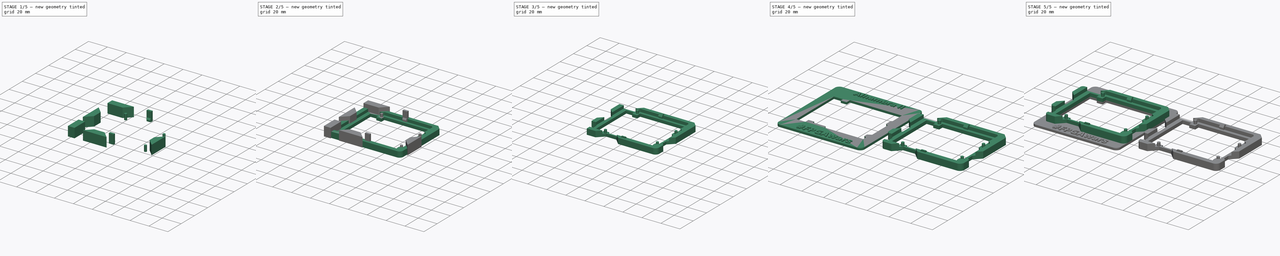
[diagram: build sequence overview — one tinted view per stage of 5, left to right]
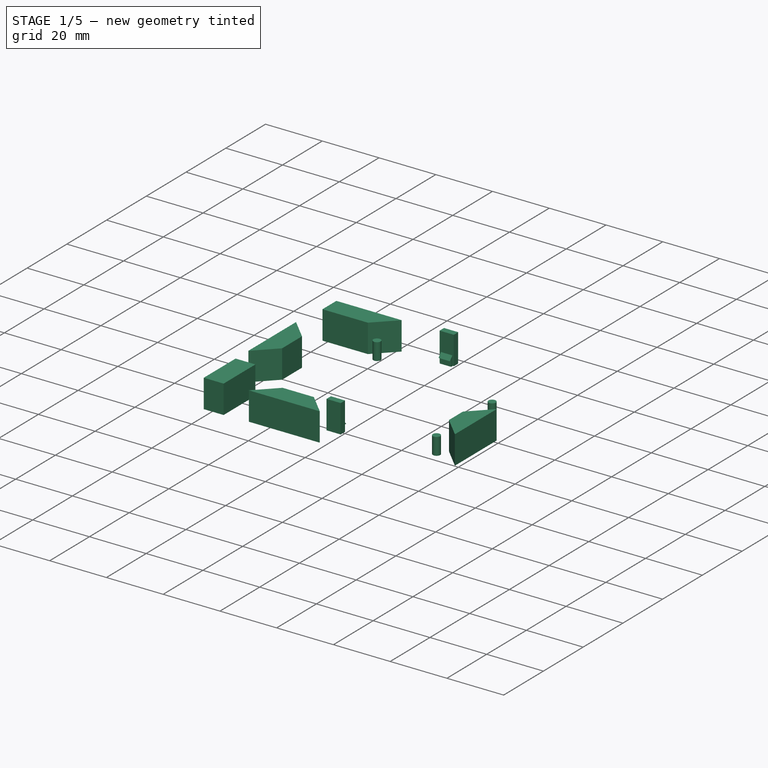
[diagram: stage 1 of 5 — iso view after this stage's code; geometry added in this stage tinted green]
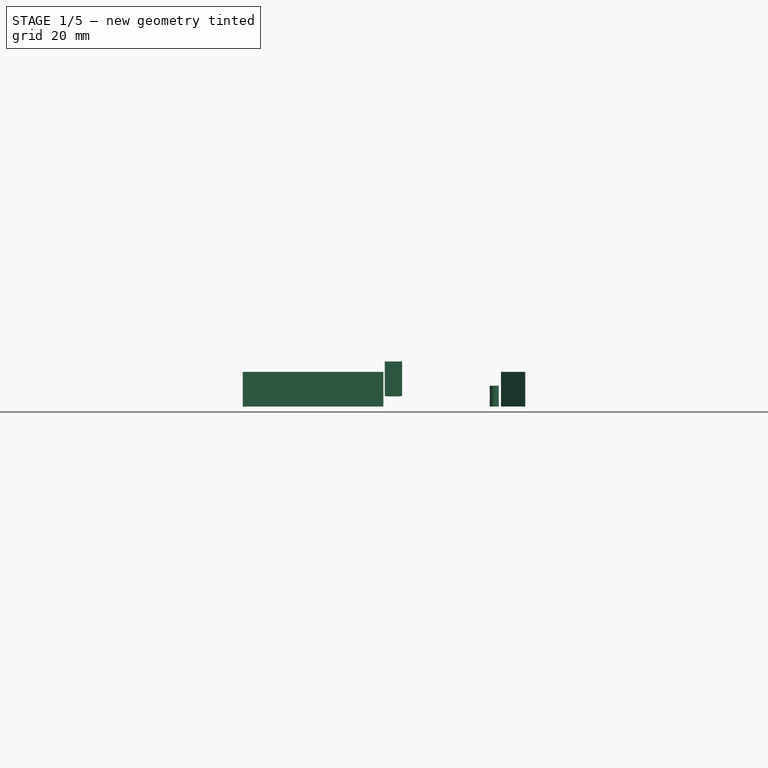
[diagram: stage 1 of 5 — front view after this stage's code; geometry added in this stage tinted green]
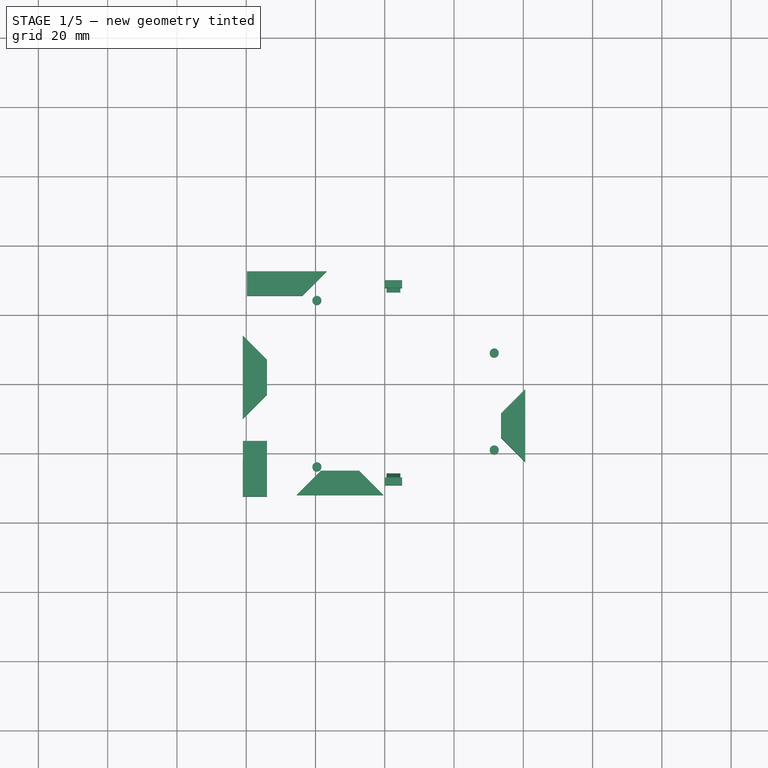
[diagram: stage 1 of 5 — top view after this stage's code; geometry added in this stage tinted green]
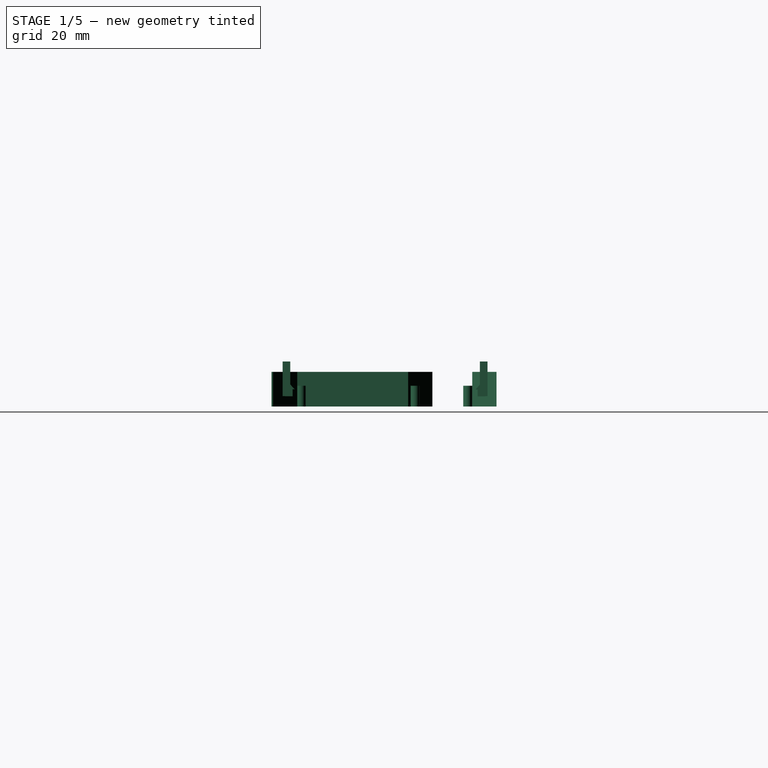
[diagram: stage 1 of 5 — right view after this stage's code; geometry added in this stage tinted green]
FCSTD DOCUMENT  (FreeCAD 0.17R9747 (Git))
Label: alhambra-II-support
License: All rights reserved
LicenseURL: http://en.wikipedia.org/wiki/All_rights_reserved
objects: Part::Extrusion×10, Sketcher::SketchObject×7, PartDesign::Body×5, Part::Cut×4, Part::MultiFuse×4, Part::Feature×3, Part::Part2DObjectPython×2, App::DocumentObjectGroup×2, Part::FeaturePython×2, Part::Fillet×2
note: 39 computed .brp shape members not serialized (recipe doc carries the construction recipe); baked Part::Feature solids carry a one-line shape summary decoded from their .brp

FEATURE [Sketcher::SketchObject] Sketch004  label="Sk-cortes-acceso-laterales"
  MapMode = 5
  sketch-geometry (20):
    g0: LineSegment StartX=-23.7646 StartY=25.5269 StartZ=0 EndX=-39.7646 EndY=25.5269 EndZ=0
    g1: LineSegment StartX=-39.7646 StartY=32.5269 StartZ=0 EndX=-16.7646 EndY=32.5269 EndZ=0
    g2: LineSegment StartX=-16.7646 StartY=32.5269 StartZ=0 EndX=-23.7646 EndY=25.5269 EndZ=0
    g3: LineSegment StartX=-34 StartY=7 StartZ=0 EndX=-34 EndY=-3 EndZ=0
    g4: LineSegment StartX=-41 StartY=14 StartZ=0 EndX=-34 EndY=7 EndZ=0
    g5: LineSegment StartX=-41 StartY=14 StartZ=0 EndX=-41 EndY=-10 EndZ=0
    g6: LineSegment StartX=-34 StartY=-32.45 StartZ=0 EndX=-34 EndY=-16.45 EndZ=0
    g7: LineSegment StartX=-18.4091 StartY=-25.0228 StartZ=0 EndX=-7.40907 EndY=-25.0228 EndZ=0
    g8: LineSegment StartX=-7.40907 StartY=-25.0228 StartZ=0 EndX=-0.409067 EndY=-32.0228 EndZ=0
    g9: LineSegment StartX=-0.409067 StartY=-32.0228 StartZ=0 EndX=-25.4091 EndY=-32.0228 EndZ=0
    g10: LineSegment StartX=-25.4091 StartY=-32.0228 StartZ=0 EndX=-18.4091 EndY=-25.0228 EndZ=0
    g11: LineSegment StartX=33.55 StartY=-8.5 StartZ=0 EndX=33.55 EndY=-15.5 EndZ=0
    g12: LineSegment StartX=33.55 StartY=-15.5 StartZ=0 EndX=40.55 EndY=-22.5 EndZ=0
    g13: LineSegment StartX=40.55 StartY=-22.5 StartZ=0 EndX=40.55 EndY=-1.5 EndZ=0
    g14: LineSegment StartX=40.55 StartY=-1.5 StartZ=0 EndX=33.55 EndY=-8.5 EndZ=0
    g15: LineSegment StartX=-34 StartY=-32.45 StartZ=0 EndX=-41 EndY=-32.45 EndZ=0
    g16: LineSegment StartX=-39.7646 StartY=25.5269 StartZ=0 EndX=-39.7646 EndY=32.5269 EndZ=0
    g17: LineSegment StartX=-34 StartY=-16.45 StartZ=0 EndX=-40.9776 EndY=-16.45 EndZ=0
    g18: LineSegment StartX=-40.9776 StartY=-16.45 StartZ=0 EndX=-41 EndY=-32.45 EndZ=0
    g19: LineSegment StartX=-41 StartY=-10 StartZ=0 EndX=-34 EndY=-3 EndZ=0
  constraints (55):
    c: Horizontal(g0)
    c: Horizontal(g1)
    c: Coincident(g1,g2)
    c: Coincident(g2,g0)
    c: Angle(g2,g0) = 2.35619
    c: Vertical(g3)
    c: Coincident(g4,g3)
    c: DistanceY(g3,g3) = 10
    c: DistanceY(g0,g1) = 7
    c: DistanceX(g4,g3) = 7
    c: Vertical(g5)
    c: Vertical(g6)
    c: Horizontal(g7)
    c: Coincident(g7,g8)
    c: Coincident(g8,g9)
    c: Horizontal(g9)
    c: Coincident(g9,g10)
    c: Coincident(g10,g7)
    c: DistanceX(g7,g7) = 11
    c: DistanceY(g9,g7) = 7
    c: Angle(g10,g7) = 2.35619
    c: Angle(g7,g8) = 2.35619
    c: Vertical(g11)
    c: Coincident(g11,g12)
    c: Coincident(g12,g13)
    c: Vertical(g13)
    c: Coincident(g13,g14)
    c: Coincident(g14,g11)
    c: DistanceX(g11,g13) = 7
    c: Angle(g14,g13) = 0.785398
    c: Angle(g13,g12) = 0.785398
    c: Coincident(g15,g6)
    c: Horizontal(g15)
    c: Coincident(g18,g15)
    c: Coincident(g16,g0)
    c: Vertical(g16)
    c: Coincident(g16,g1)
    c: DistanceY(g6,g6) = 16
    c: DistanceX(g6,g-1) = 34
    c: DistanceX(g0,g0) = 16
    c: Horizontal(g17)
    c: Coincident(g17,g18)
    c: DistanceX(g5,g3) = 7
    c: Coincident(g4,g5)
    c: Coincident(g6,g17)
    c: DistanceY(g11,g11) = 7
    c: DistanceY(g11,g-1) = 8.5
    c: DistanceX(g-1,g11) = 33.55
    c: Coincident(g19,g5)
    c: Coincident(g19,g3)
    c: Angle(g19,g5) = 0.785398
    c: Angle(g5,g4) = 0.785398
    c: DistanceY(g-1,g3) = 7
    c: DistanceX(g3,g-1) = 34
    c: DistanceY(g6,g-1) = 32.45
FEATURE [Part::Extrusion] Extrude003  label="Cortes-acceso-laterales"
  Base = -> Sketch004
  Dir = (0,0,1)
  DirMode = 2
  FaceMakerClass = Part::FaceMakerBullseye
  LengthFwd = 10
  LengthRev = 0
  Solid = true
  Symmetric = false
FEATURE [Sketcher::SketchObject] Sketch005  label="Sk-huecos-clic-agarre"
  MapMode = 5
  Support = -> [XY_Plane002]
  sketch-geometry (8):
    g0: LineSegment StartX=0 StartY=27.71 StartZ=0 EndX=5 EndY=27.71 EndZ=0
    g1: LineSegment StartX=5 StartY=27.71 StartZ=0 EndX=5 EndY=29.91 EndZ=0
    g2: LineSegment StartX=5 StartY=29.91 StartZ=0 EndX=0 EndY=29.91 EndZ=0
    g3: LineSegment StartX=0 StartY=29.91 StartZ=0 EndX=0 EndY=27.71 EndZ=0
    g4: LineSegment StartX=0 StartY=-27.03 StartZ=0 EndX=5 EndY=-27.03 EndZ=0
    g5: LineSegment StartX=5 StartY=-27.03 StartZ=0 EndX=5 EndY=-29.23 EndZ=0
    g6: LineSegment StartX=5 StartY=-29.23 StartZ=0 EndX=0 EndY=-29.23 EndZ=0
    g7: LineSegment StartX=0 StartY=-29.23 StartZ=0 EndX=0 EndY=-27.03 EndZ=0
  constraints (24):
    c: Coincident(g0,g1)
    c: Coincident(g1,g2)
    c: Coincident(g2,g3)
    c: Coincident(g3,g0)
    c: Horizontal(g0)
    c: Horizontal(g2)
    c: Vertical(g1)
    c: Vertical(g3)
    c: PointOnObject(g0,g-2)
    c: Coincident(g4,g5)
    c: Coincident(g5,g6)
    c: Coincident(g6,g7)
    c: Coincident(g7,g4)
    c: Horizontal(g4)
    c: Horizontal(g6)
    c: Vertical(g5)
    c: Vertical(g7)
    c: PointOnObject(g4,g-2)
    c: DistanceY(g1,g1) = 2.2
    c: DistanceX(g2,g2) = 5
    c: DistanceY(g5,g5) = 2.2
    c: DistanceX(g6,g6) = 5
    c: DistanceY(g-1,g0) = 27.71
    c: DistanceY(g4,g-1) = 27.03
FEATURE [Part::Extrusion] Extrude004  label="huecos-clic-agarre"
  Base = -> Sketch005
  Dir = (0,0,1)
  DirMode = 2
  FaceMakerClass = Part::FaceMakerBullseye
  LengthFwd = 10
  LengthRev = 0
  Placement = pos=(0,0,3) rot=(0,0,1;0rad)
  Solid = true
  Symmetric = false
FEATURE [Sketcher::SketchObject] Sketch006  label="Sk-click-agarre"
  MapMode = 5
  Placement = pos=(0,0,0) rot=(0.57735,0.57735,0.57735;2.0944rad)
  Support = -> [YZ_Plane002]
  sketch-geometry (12):
    g0: LineSegment StartX=29.253 StartY=2.91375 StartZ=0 EndX=27.053 EndY=2.91375 EndZ=0
    g1: LineSegment StartX=27.053 StartY=2.91375 StartZ=0 EndX=27.053 EndY=4.91375 EndZ=0
    g2: LineSegment StartX=27.053 StartY=4.91375 StartZ=0 EndX=26.453 EndY=4.91375 EndZ=0
    g3: LineSegment StartX=26.453 StartY=4.91375 StartZ=0 EndX=28.253 EndY=6.91375 EndZ=0
    g4: LineSegment StartX=28.253 StartY=6.91375 StartZ=0 EndX=29.253 EndY=6.91375 EndZ=0
    g5: LineSegment StartX=29.253 StartY=6.91375 StartZ=0 EndX=29.253 EndY=2.91375 EndZ=0
    g6: LineSegment StartX=-26.3544 StartY=2.97545 StartZ=0 EndX=-28.5544 EndY=2.97545 EndZ=0
    g7: LineSegment StartX=-28.5544 StartY=2.97545 StartZ=0 EndX=-28.5544 EndY=6.97545 EndZ=0
    g8: LineSegment StartX=-28.5544 StartY=6.97545 StartZ=0 EndX=-27.5544 EndY=6.97545 EndZ=0
    g9: LineSegment StartX=-27.5544 StartY=6.97545 StartZ=0 EndX=-25.7544 EndY=4.97545 EndZ=0
    g10: LineSegment StartX=-25.7544 StartY=4.97545 StartZ=0 EndX=-26.3544 EndY=4.97545 EndZ=0
    g11: LineSegment StartX=-26.3544 StartY=4.97545 StartZ=0 EndX=-26.3544 EndY=2.97545 EndZ=0
  constraints (32):
    c: Horizontal(g0)
    c: Coincident(g0,g1)
    c: Vertical(g1)
    c: Coincident(g1,g2)
    c: Coincident(g2,g3)
    c: Coincident(g3,g4)
    c: Coincident(g4,g5)
    c: Coincident(g5,g0)
    c: Vertical(g5)
    c: DistanceY(g5,g5) = 4
    c: DistanceX(g0,g0) = 2.2
    c: Horizontal(g4)
    c: DistanceX(g4,g4) = 1
    c: Horizontal(g2)
    c: DistanceX(g2,g2) = 0.6
    c: DistanceY(g0,g1) = 2
    c: Horizontal(g6)
    c: Coincident(g6,g7)
    c: Vertical(g7)
    c: Coincident(g7,g8)
    c: Horizontal(g8)
    c: Coincident(g8,g9)
    c: Coincident(g9,g10)
    c: Horizontal(g10)
    c: Coincident(g10,g11)
    c: Coincident(g11,g6)
    c: Vertical(g11)
    c: DistanceX(g6,g6) = 2.2
    c: DistanceY(g7,g7) = 4
    c: DistanceX(g8,g8) = 1
    c: DistanceX(g10,g10) = 0.6
    c: DistanceY(g6,g10) = 2
FEATURE [PartDesign::Body] Body002  label="Body-clic-agarre"
  Group = -> [Sketch005,Sketch006]
  Origin = -> Body002Origin
FEATURE [Part::Extrusion] Extrude005  label="clicks"
  Base = -> Sketch006
  Dir = (1,0,0)
  DirMode = 2
  FaceMakerClass = Part::FaceMakerBullseye
  LengthFwd = 4
  LengthRev = 0
  Placement = pos=(0.5,0,0) rot=(0,0,1;0rad)
  Solid = true
  Symmetric = false
FEATURE [Sketcher::SketchObject] Sketch007  label="Sk-taladros"
  MapMode = 5
  Support = -> [XY_Plane003]
  sketch-geometry (4):
    g0: Circle CenterX=-19.6 CenterY=24.2 CenterZ=0 NormalX=0 NormalY=0 NormalZ=1 Radius=1.3
    g1: Circle CenterX=31.6 CenterY=9.03 CenterZ=0 NormalX=0 NormalY=0 NormalZ=1 Radius=1.3
    g2: Circle CenterX=31.6 CenterY=-18.97 CenterZ=0 NormalX=0 NormalY=0 NormalZ=1 Radius=1.3
    g3: Circle CenterX=-19.6 CenterY=-23.85 CenterZ=0 NormalX=0 NormalY=0 NormalZ=1 Radius=1.3
  constraints (12):
    c: Radius(g0) = 1.3
    c: Equal(g0,g1)
    c: Equal(g1,g2)
    c: Equal(g2,g3)
    c: DistanceY(g2,g1) = 28
    c: DistanceX(g-1,g1) = 31.6
    c: DistanceY(g2,g-1) = 18.97
    c: DistanceX(g3,g-1) = 19.6
    c: DistanceY(g3,g-1) = 23.85
    c: DistanceY(g-1,g0) = 24.2
    c: DistanceX(g0,g-1) = 19.6
    c: DistanceX(g-1,g2) = 31.6
FEATURE [PartDesign::Body] Body003  label="Body-taladros"
  Group = -> [Sketch007]
  Origin = -> Body003Origin
FEATURE [Part::Extrusion] Extrude006  label="Taladros"
  Base = -> Sketch007
  Dir = (0,0,1)
  DirMode = 2
  FaceMakerClass = Part::FaceMakerBullseye
  LengthFwd = 6
  LengthRev = 0
  Solid = true
  Symmetric = false
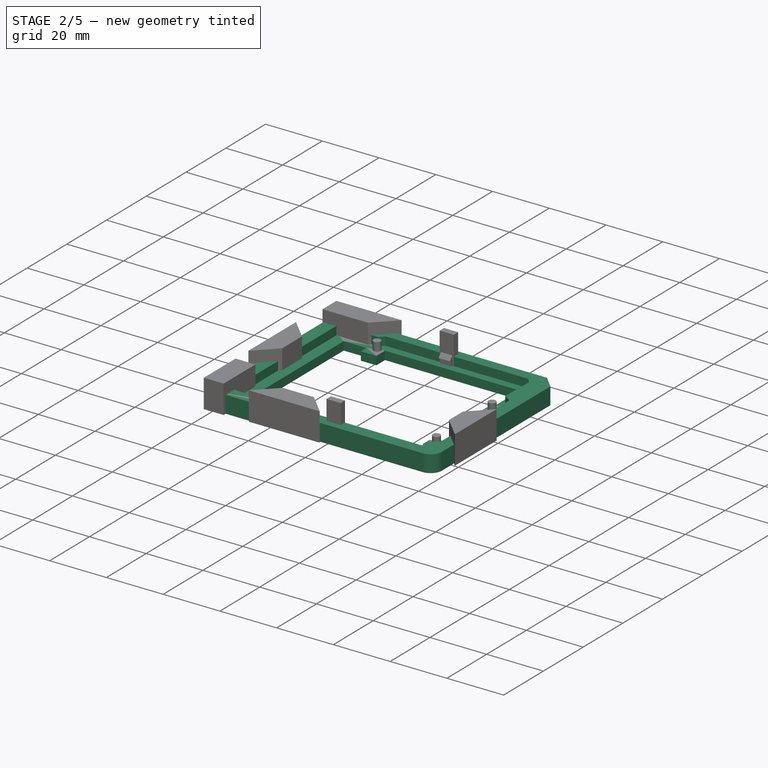
[diagram: stage 2 of 5 — iso view after this stage's code; geometry added in this stage tinted green]
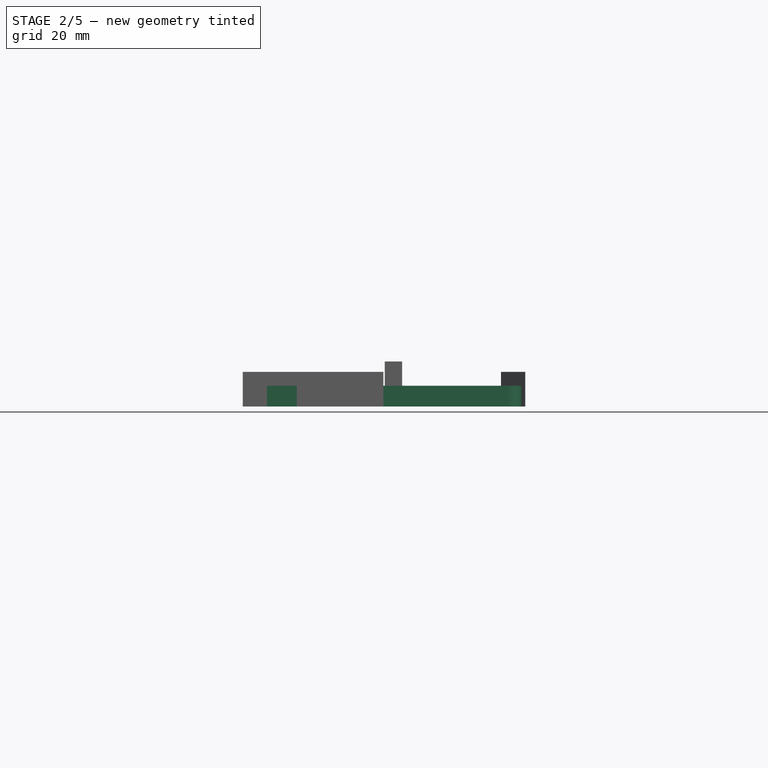
[diagram: stage 2 of 5 — front view after this stage's code; geometry added in this stage tinted green]
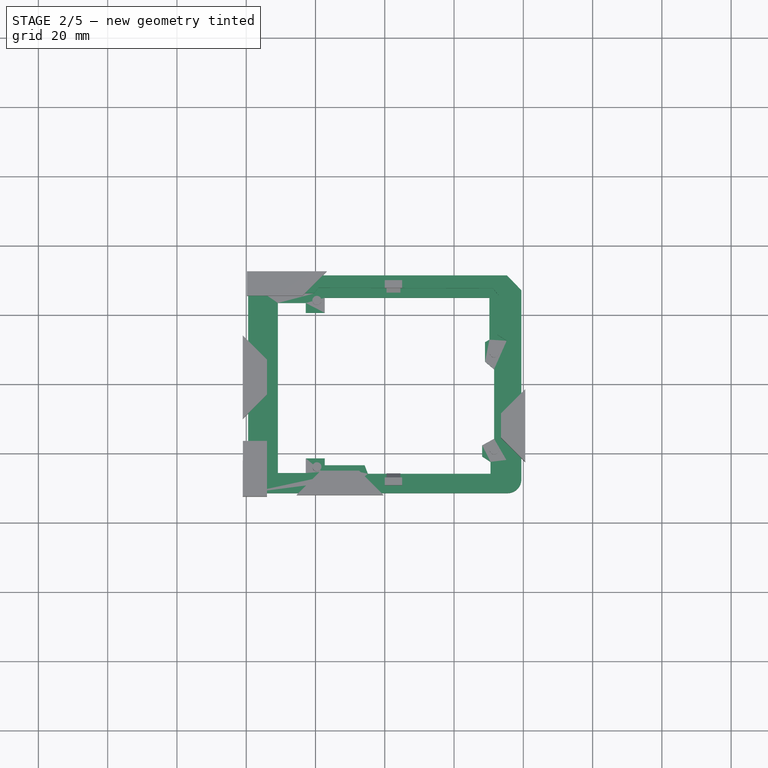
[diagram: stage 2 of 5 — top view after this stage's code; geometry added in this stage tinted green]
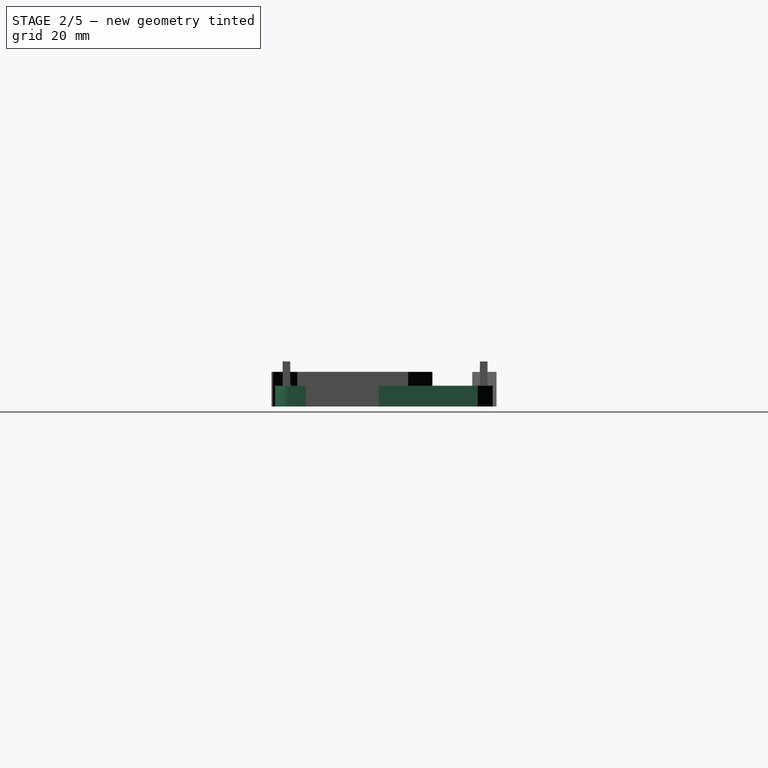
[diagram: stage 2 of 5 — right view after this stage's code; geometry added in this stage tinted green]
FEATURE [Part::Feature] path814  label="contorno-PCB"
  Placement = pos=(-34.8,27.8,0) rot=(0,0,1;0rad)
  shape: bbox 69.69 x 54.68 x 2e-07 mm, 0 faces, 0 solids (baked)
FEATURE [Part::Feature] path814001  label="contorno-PCB-offset"
  Placement = pos=(-34.8,27.8,0) rot=(0,0,1;0rad)
  shape: bbox 70.09 x 55 x 2e-07 mm, 0 faces, 0 solids (baked)
FEATURE [PartDesign::Body] Body  label="Body-soporte-base"
  Origin = -> BodyOrigin
FEATURE [Sketcher::SketchObject] Sketch  label="Sketch-base"
  MapMode = 5
  Support = -> [XY_Plane]
  sketch-geometry (10):
    g0: LineSegment StartX=-39.44 StartY=31.42 StartZ=0 EndX=35.25 EndY=31.42 EndZ=0
    g1: LineSegment StartX=39.44 StartY=27.12 StartZ=0 EndX=39.44 EndY=-27.42 EndZ=0
    g2: LineSegment StartX=35.44 StartY=-31.42 StartZ=0 EndX=-39.44 EndY=-31.42 EndZ=0
    g3: LineSegment StartX=-39.44 StartY=-31.42 StartZ=0 EndX=-39.44 EndY=31.42 EndZ=0
    g4: ArcOfCircle CenterX=35.44 CenterY=-27.42 CenterZ=0 NormalX=0 NormalY=0 NormalZ=1 Radius=4 StartAngle=4.71239 EndAngle=6.28319
    g5: LineSegment StartX=35.25 StartY=31.42 StartZ=0 EndX=39.44 EndY=27.12 EndZ=0
    g6: LineSegment [constr] StartX=-35.14 StartY=27.12 StartZ=0 EndX=35.14 EndY=27.12 EndZ=0
    g7: LineSegment [constr] StartX=-35.14 StartY=-27.12 StartZ=0 EndX=34.88 EndY=-27.12 EndZ=0
    g8: LineSegment [constr] StartX=-35.14 StartY=-27.12 StartZ=0 EndX=-35.14 EndY=27.12 EndZ=0
    g9: LineSegment [constr] StartX=35.14 StartY=27.12 StartZ=0 EndX=34.88 EndY=-27.12 EndZ=0
  constraints (29):
    c: Horizontal(g0)
    c: Horizontal(g2)
    c: Vertical(g1)
    c: Vertical(g3)
    c: Tangent(g1,g4) = 1.5708
    c: Tangent(g2,g4) = 1.5708
    c: Coincident(g5,g0)
    c: Coincident(g1,g5)
    c: Coincident(g2,g3)
    c: Coincident(g0,g3)
    c: Horizontal(g6)
    c: Horizontal(g7)
    c: Vertical(g8)
    c: Coincident(g7,g8)
    c: Coincident(g8,g6)
    c: Coincident(g9,g7)
    c: Coincident(g9,g6)
    c: Symmetric(g6,g7,g-1)
    c: Symmetric(g6,g6,g-2)
    c: DistanceX(g6,g1) = 4.3
    c: DistanceY(g6,g0) = 4.3
    c: DistanceX(g0,g6) = 4.3
    c: DistanceY(g2,g7) = 4.3
    c: DistanceX(g6,g-1) = 35.14
    c: DistanceY(g-1,g6) = 27.12
    c: Radius(g4) = 4
    c: DistanceX(g0,g0) = 74.69
    c: DistanceY(g1,g1) = 54.54
    c: DistanceX(g-1,g7) = 34.88
FEATURE [Part::Extrusion] Extrude  label="Soporte-base-ciego"
  Base = -> Sketch
  Dir = (0,0,1)
  DirMode = 2
  FaceMakerClass = Part::FaceMakerBullseye
  LengthFwd = 6
  LengthRev = 0
  Solid = true
  Symmetric = false
FEATURE [Part::Feature] Face
  shape: bbox 79.75 x 64.01 x 2e-07 mm, 1 faces, 0 solids (baked)
FEATURE [Part::Extrusion] Extrude001  label="Base-PCB-offset"
  Base = -> Face
  Dir = (0,0,1)
  DirMode = 0
  FaceMakerClass = Part::FaceMakerBullseye
  LengthFwd = 10
  LengthRev = 0
  Placement = pos=(0,0,3) rot=(0,0,1;0rad)
  Solid = true
  Symmetric = false
FEATURE [Part::Cut] Cut  label="Soporte-base-1"
  Base = -> Extrude
  Tool = -> Extrude001
FEATURE [PartDesign::Body] Body001  label="Body-corte-base"
  Origin = -> Body001Origin
FEATURE [Sketcher::SketchObject] Sketch002  label="Sk-corte-base"
  MapMode = 5
  Support = -> [XY_Plane]
  sketch-geometry (22):
    g0: LineSegment StartX=30.512 StartY=-25.8121 StartZ=0 EndX=30.512 EndY=-22.3774 EndZ=0
    g1: LineSegment StartX=30.512 StartY=-22.3774 StartZ=0 EndX=28.1163 EndY=-20.8162 EndZ=0
    g2: LineSegment StartX=28.1163 StartY=-20.8162 StartZ=0 EndX=28.1163 EndY=-17.599 EndZ=0
    g3: LineSegment StartX=28.1163 StartY=-17.599 StartZ=0 EndX=31.5528 EndY=-15.7162 EndZ=0
    g4: LineSegment StartX=31.5528 StartY=-15.7162 StartZ=0 EndX=31.5528 EndY=4.37142 EndZ=0
    g5: LineSegment StartX=31.5528 StartY=4.37142 StartZ=0 EndX=28.9508 EndY=6.55712 EndZ=0
    g6: LineSegment StartX=28.9508 StartY=6.55712 StartZ=0 EndX=28.9508 EndY=12.1775 EndZ=0
    g7: LineSegment StartX=28.9508 StartY=12.1775 StartZ=0 EndX=30.1998 EndY=12.9061 EndZ=0
    g8: LineSegment StartX=30.1998 StartY=12.9061 StartZ=0 EndX=30.1998 EndY=25 EndZ=0
    g9: LineSegment StartX=30.1998 StartY=25 StartZ=0 EndX=-17.3441 EndY=25 EndZ=0
    g10: LineSegment StartX=-30.85 StartY=23.4904 StartZ=0 EndX=-30.85 EndY=-25.6039 EndZ=0
    g11: LineSegment StartX=-30.85 StartY=-25.6039 StartZ=0 EndX=-22.8 EndY=-25.6039 EndZ=0
    g12: LineSegment StartX=-22.8 StartY=-25.6039 StartZ=0 EndX=-22.8 EndY=-21.382 EndZ=0
    g13: LineSegment StartX=-22.8 StartY=-21.382 StartZ=0 EndX=-17.3441 EndY=-21.382 EndZ=0
    g14: LineSegment StartX=-17.3441 StartY=-23.3451 StartZ=0 EndX=-5.82142 EndY=-23.3451 EndZ=0
    g15: LineSegment StartX=-5.82142 StartY=-23.3451 StartZ=0 EndX=-4.87554 EndY=-25.8121 EndZ=0
    g16: LineSegment StartX=-4.87554 StartY=-25.8121 StartZ=0 EndX=30.512 EndY=-25.8121 EndZ=0
    g17: LineSegment StartX=-17.3441 StartY=20.6526 StartZ=0 EndX=-22.8 EndY=20.6526 EndZ=0
    g18: LineSegment StartX=-22.8 StartY=20.6526 StartZ=0 EndX=-22.8 EndY=23.4904 EndZ=0
    g19: LineSegment StartX=-22.8 StartY=23.4904 StartZ=0 EndX=-30.85 EndY=23.4904 EndZ=0
    g20: LineSegment StartX=-17.3441 StartY=25 StartZ=0 EndX=-17.3441 EndY=20.6526 EndZ=0
    g21: LineSegment StartX=-17.3441 StartY=-21.382 StartZ=0 EndX=-17.3441 EndY=-23.3451 EndZ=0
  constraints (40):
    c: Vertical(g0)
    c: Coincident(g0,g1)
    c: Coincident(g1,g2)
    c: Vertical(g2)
    c: Coincident(g2,g3)
    c: Coincident(g3,g4)
    c: Vertical(g4)
    c: Coincident(g4,g5)
    c: Coincident(g5,g6)
    c: Vertical(g6)
    c: Coincident(g6,g7)
    c: Coincident(g7,g8)
    c: Vertical(g8)
    c: Coincident(g8,g9)
    c: Horizontal(g9)
    c: Vertical(g10)
    c: Coincident(g10,g11)
    c: Horizontal(g11)
    c: Coincident(g11,g12)
    c: Horizontal(g14)
    c: Coincident(g14,g15)
    c: Coincident(g15,g16)
    c: Horizontal(g16)
    c: Vertical(g12)
    c: Horizontal(g13)
    c: DistanceX(g10,g-1) = 30.85
    c: Coincident(g12,g13)
    c: DistanceY(g-1,g8) = 25
    c: Horizontal(g17)
    c: Coincident(g18,g17)
    c: Vertical(g18)
    c: Horizontal(g19)
    c: Coincident(g10,g19)
    c: Coincident(g19,g18)
    c: Vertical(g20)
    c: Coincident(g14,g21)
    c: Tangent(g20,g21)
    c: Coincident(g13,g21)
    c: Coincident(g17,g20)
    c: Coincident(g20,g9)
FEATURE [Part::Extrusion] Extrude002  label="Corte-base"
  Base = -> Sketch002
  Dir = (0,0,1)
  DirMode = 2
  FaceMakerClass = Part::FaceMakerBullseye
  LengthFwd = 10
  LengthRev = 0
  Placement = pos=(0,0,-2) rot=(0,0,1;0rad)
  Solid = true
  Symmetric = false
FEATURE [Part::Cut] Cut001  label="Soporte-base-2"
  Base = -> Cut
  Tool = -> Extrude002
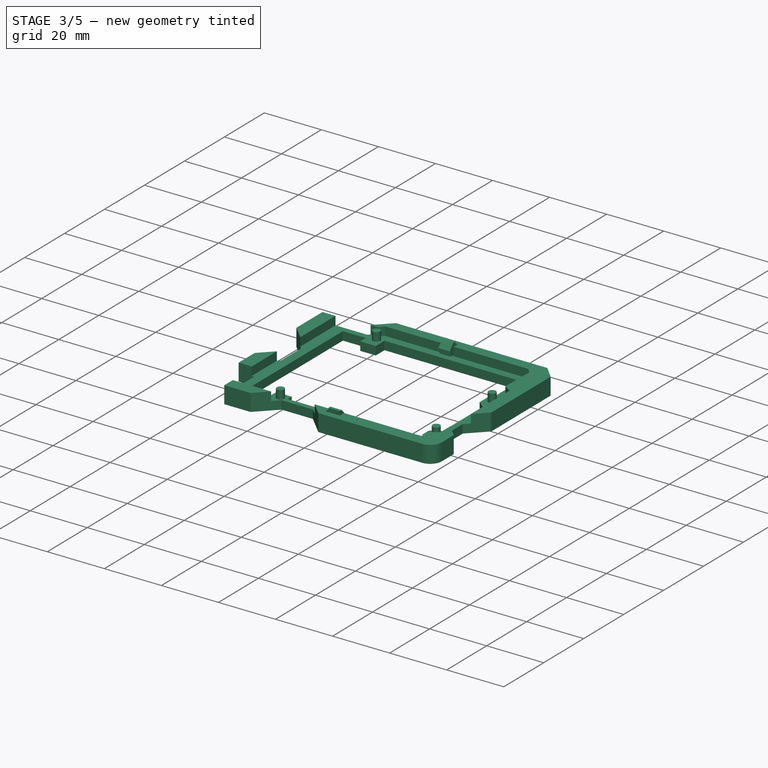
[diagram: stage 3 of 5 — iso view after this stage's code; geometry added in this stage tinted green]
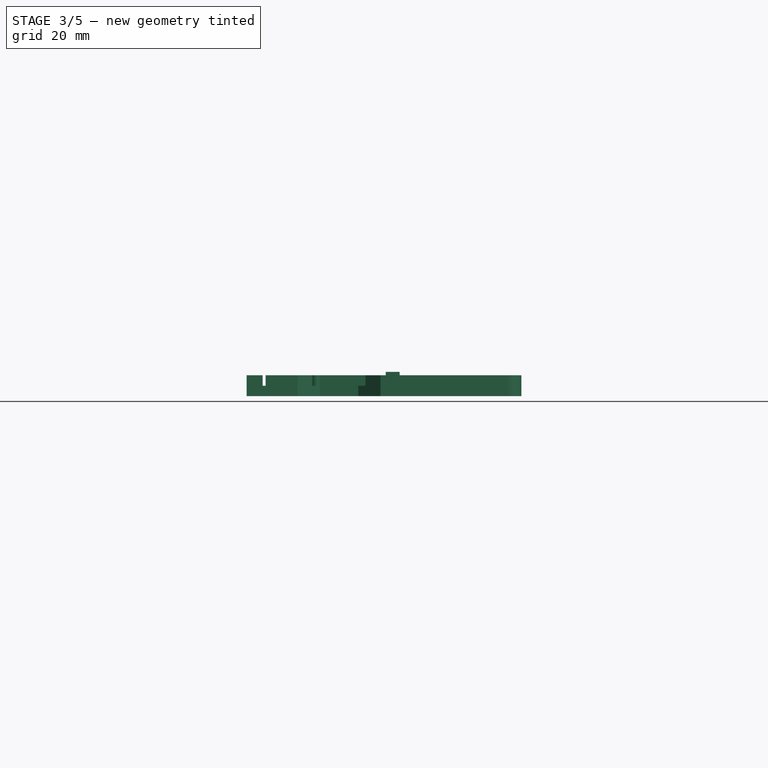
[diagram: stage 3 of 5 — front view after this stage's code; geometry added in this stage tinted green]
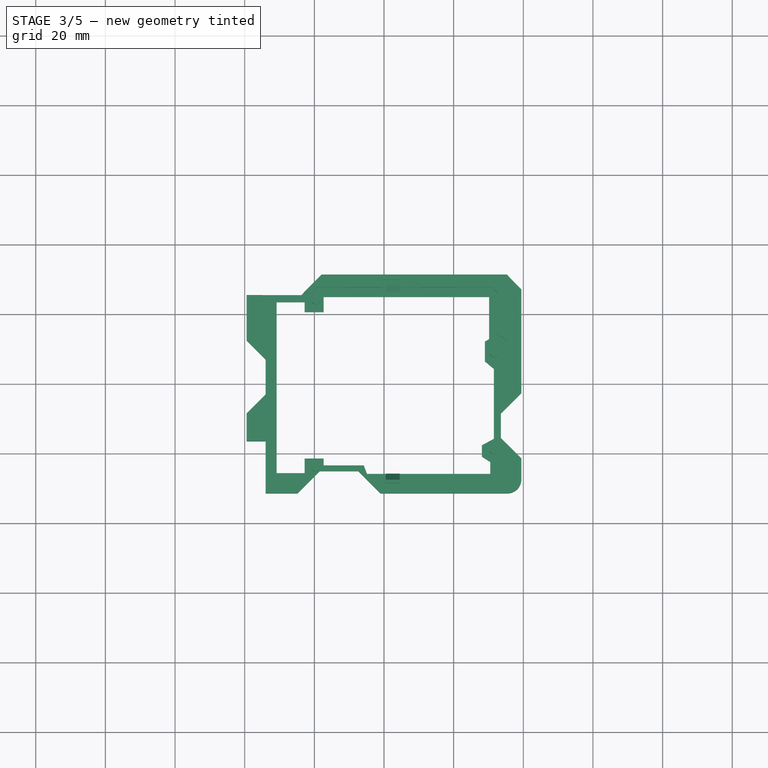
[diagram: stage 3 of 5 — top view after this stage's code; geometry added in this stage tinted green]
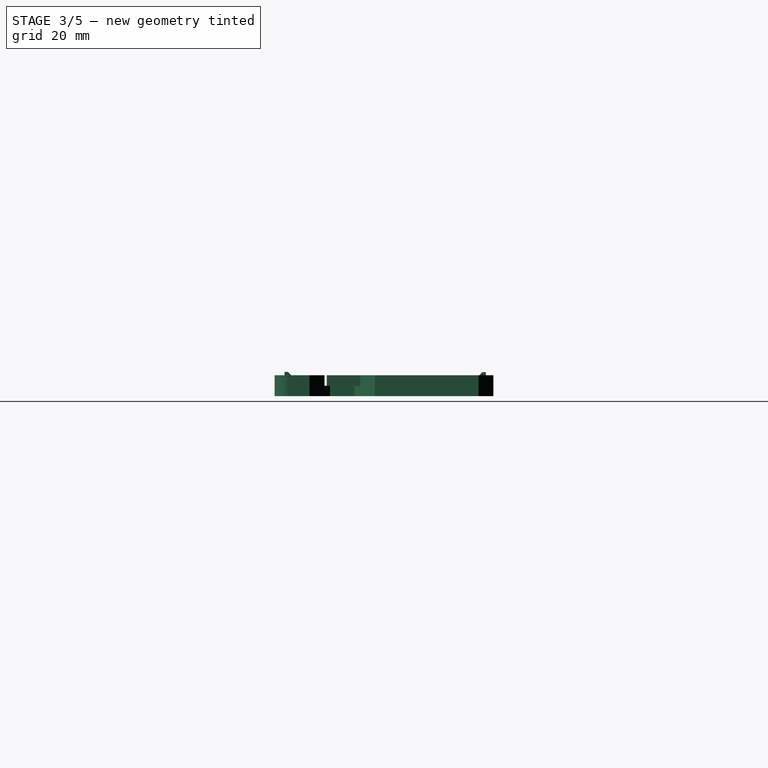
[diagram: stage 3 of 5 — right view after this stage's code; geometry added in this stage tinted green]
FEATURE [Part::Cut] Cut002  label="Soporte-base-3"
  Base = -> Cut001
  Tool = -> Extrude003
FEATURE [Part::Cut] Cut003  label="Soporte-base-4"
  Base = -> Cut002
  Tool = -> Extrude004
FEATURE [Part::MultiFuse] Fusion  label="Soporte-base-5"
  Shapes = -> [Cut003,Extrude005]
FEATURE [Part::MultiFuse] Fusion001  label="Soperte-Alhambra-II-sin-texto"
  Shapes = -> [Extrude006,Fusion]
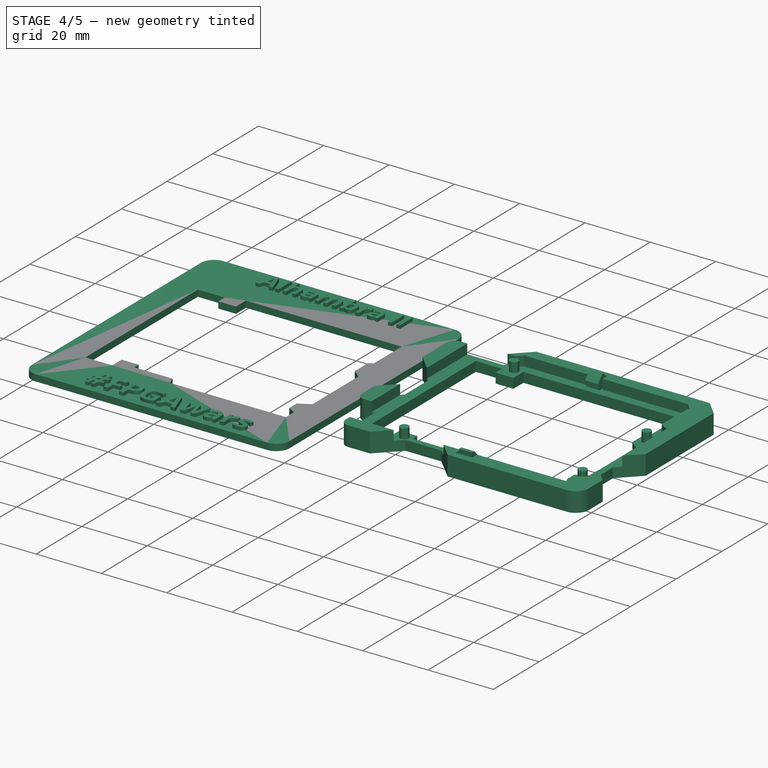
[diagram: stage 4 of 5 — iso view after this stage's code; geometry added in this stage tinted green]
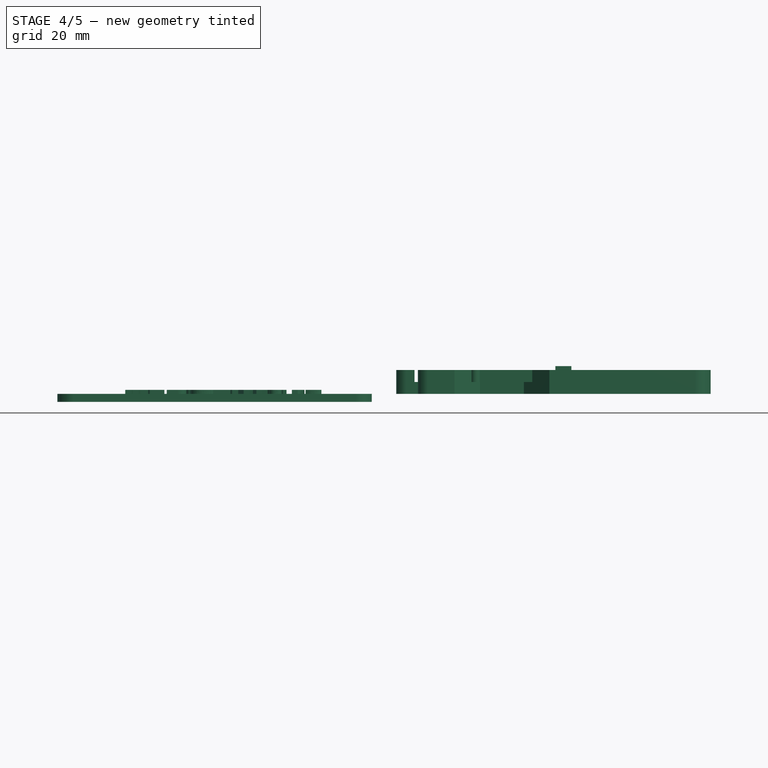
[diagram: stage 4 of 5 — front view after this stage's code; geometry added in this stage tinted green]
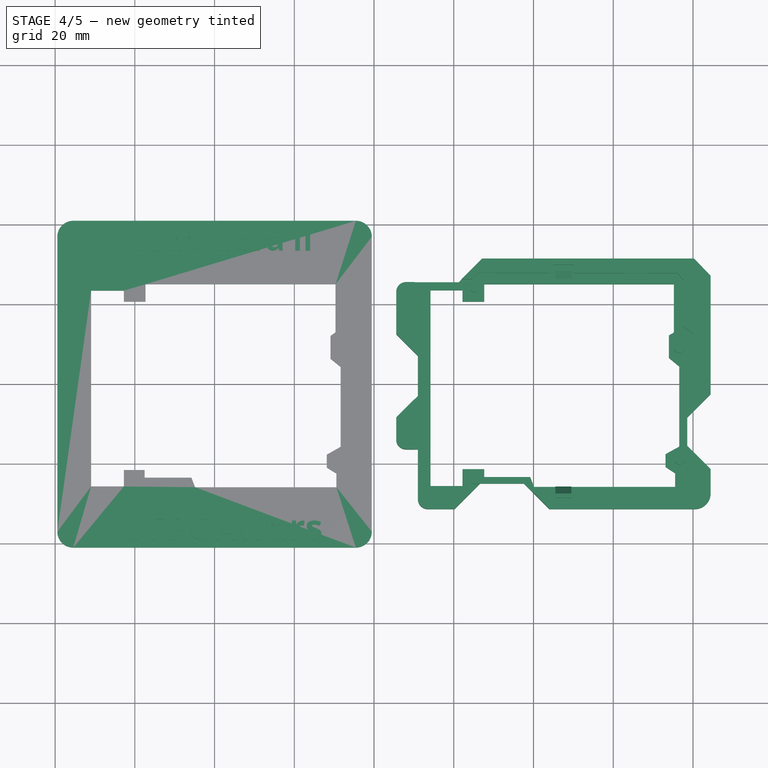
[diagram: stage 4 of 5 — top view after this stage's code; geometry added in this stage tinted green]
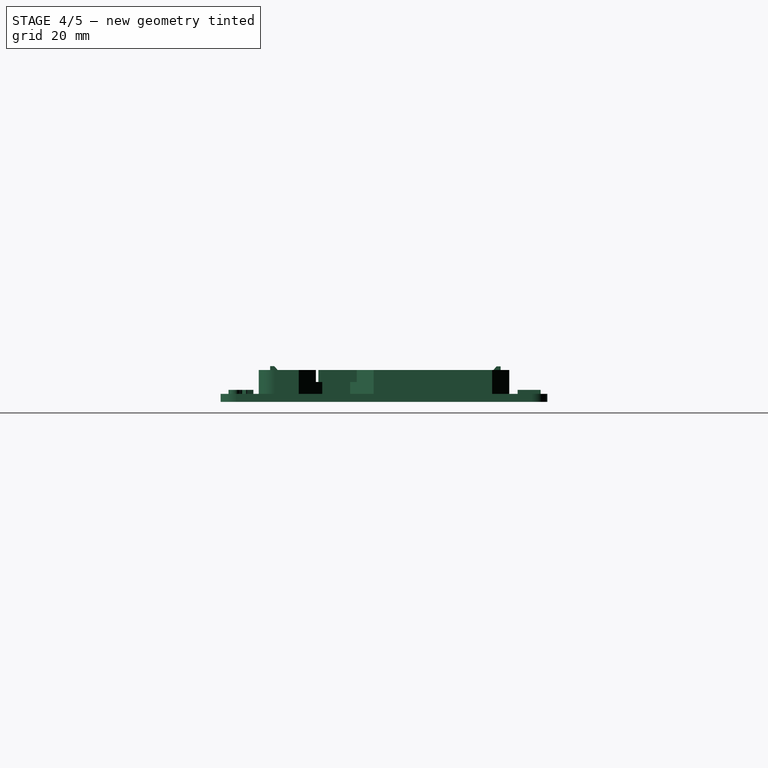
[diagram: stage 4 of 5 — right view after this stage's code; geometry added in this stage tinted green]
FEATURE [PartDesign::Body] Body004  label="Body-texto"
  Origin = -> Body004Origin
FEATURE [Sketcher::SketchObject] Sketch008  label="Sk-base-texto"
  ExternalGeometry = -> [Fusion001]
  MapMode = 5
  Placement = pos=(0,0,-5) rot=(0,0,1;0rad)
  sketch-geometry (30):
    g0: LineSegment StartX=-35.44 StartY=40.99 StartZ=0 EndX=35.44 EndY=40.99 EndZ=0
    g1: LineSegment StartX=39.44 StartY=36.99 StartZ=0 EndX=39.44 EndY=-37 EndZ=0
    g2: LineSegment StartX=35.44 StartY=-41 StartZ=0 EndX=-35.44 EndY=-41 EndZ=0
    g3: LineSegment StartX=-39.44 StartY=-37 StartZ=0 EndX=-39.44 EndY=36.99 EndZ=0
    g4: ArcOfCircle CenterX=-35.44 CenterY=36.99 CenterZ=0 NormalX=0 NormalY=0 NormalZ=1 Radius=4 StartAngle=1.5708 EndAngle=3.14159
    g5: ArcOfCircle CenterX=35.44 CenterY=36.99 CenterZ=0 NormalX=0 NormalY=0 NormalZ=1 Radius=4 StartAngle=0 EndAngle=1.5708
    g6: ArcOfCircle CenterX=35.44 CenterY=-37 CenterZ=0 NormalX=0 NormalY=0 NormalZ=1 Radius=4 StartAngle=4.71239 EndAngle=6.28319
    g7: ArcOfCircle CenterX=-35.44 CenterY=-37 CenterZ=0 NormalX=0 NormalY=0 NormalZ=1 Radius=4 StartAngle=3.14159 EndAngle=4.71239
    g8: LineSegment StartX=-17.3326 StartY=25.0633 StartZ=0 EndX=30.3492 EndY=25.0633 EndZ=0
    g9: LineSegment StartX=30.3492 StartY=25.0633 StartZ=0 EndX=30.3492 EndY=13.0211 EndZ=0
    g10: LineSegment StartX=30.5577 StartY=-25.8546 StartZ=0 EndX=-4.8757 EndY=-25.8546 EndZ=0
    g11: LineSegment StartX=-30.9633 StartY=-25.6581 StartZ=0 EndX=-30.9633 EndY=23.4804 EndZ=0
    g12: LineSegment StartX=-30.9633 StartY=23.4804 StartZ=0 EndX=-22.7323 EndY=23.4804 EndZ=0
    g13: LineSegment StartX=-22.7323 StartY=23.4804 StartZ=0 EndX=-22.7323 EndY=20.6979 EndZ=0
    g14: LineSegment StartX=-22.7323 StartY=20.6979 StartZ=0 EndX=-17.3326 EndY=20.6979 EndZ=0
    g15: LineSegment StartX=-17.3326 StartY=20.6979 StartZ=0 EndX=-17.3326 EndY=25.0633 EndZ=0
    g16: LineSegment StartX=30.3492 StartY=13.0211 StartZ=0 EndX=29.0718 EndY=12.0876 EndZ=0
    g17: LineSegment StartX=29.0718 StartY=12.0876 StartZ=0 EndX=29.0718 EndY=6.38862 EndZ=0
    g18: LineSegment StartX=29.0718 StartY=6.38862 StartZ=0 EndX=31.6266 EndY=4.3252 EndZ=0
    g19: LineSegment StartX=31.6266 StartY=4.3252 StartZ=0 EndX=31.6266 EndY=-15.7137 EndZ=0
    g20: LineSegment StartX=31.6266 StartY=-15.7137 StartZ=0 EndX=28.1504 EndY=-17.6788 EndZ=0
    g21: LineSegment StartX=28.1504 StartY=-17.6788 StartZ=0 EndX=28.1504 EndY=-20.9214 EndZ=0
    g22: LineSegment StartX=28.1504 StartY=-20.9214 StartZ=0 EndX=30.5577 EndY=-22.3952 EndZ=0
    g23: LineSegment StartX=30.5577 StartY=-22.3952 StartZ=0 EndX=30.5577 EndY=-25.8546 EndZ=0
    g24: LineSegment StartX=-4.8757 StartY=-25.8546 StartZ=0 EndX=-5.80915 EndY=-23.4518 EndZ=0
    g25: LineSegment StartX=-5.80915 StartY=-23.4518 StartZ=0 EndX=-17.5548 EndY=-23.4518 EndZ=0
    g26: LineSegment StartX=-17.5548 StartY=-23.4518 StartZ=0 EndX=-17.5548 EndY=-21.5357 EndZ=0
    g27: LineSegment StartX=-17.5548 StartY=-21.5357 StartZ=0 EndX=-22.7587 EndY=-21.5357 EndZ=0
    g28: LineSegment StartX=-22.7587 StartY=-21.5357 StartZ=0 EndX=-22.7587 EndY=-25.6581 EndZ=0
    g29: LineSegment StartX=-22.7587 StartY=-25.6581 StartZ=0 EndX=-30.9633 EndY=-25.6581 EndZ=0
  constraints (59):
    c: Horizontal(g0)
    c: Horizontal(g2)
    c: Vertical(g1)
    c: Vertical(g3)
    c: Tangent(g0,g4) = 1.5708
    c: Tangent(g3,g4) = 1.5708
    c: Tangent(g0,g5) = 1.5708
    c: Tangent(g1,g5) = 1.5708
    c: Tangent(g1,g6) = 1.5708
    c: Tangent(g2,g6) = 1.5708
    c: Tangent(g2,g7) = 1.5708
    c: Tangent(g3,g7) = 1.5708
    c: Equal(g4,g5)
    c: Equal(g5,g6)
    c: Equal(g6,g7)
    c: Radius(g4) = 4
    c: Coincident(g8,g9)
    c: Horizontal(g8)
    c: Horizontal(g10)
    c: Vertical(g9)
    c: Vertical(g11)
    c: DistanceY(g1,g1) = 73.99
    c: DistanceY(g-1,g5) = 36.99
    c: DistanceX(g-4,g3) = 0
    c: DistanceX(g1,g-3) = 0
    c: Coincident(g11,g12)
    c: Horizontal(g12)
    c: Coincident(g12,g13)
    c: Vertical(g13)
    c: Coincident(g13,g14)
    c: Horizontal(g14)
    c: Coincident(g14,g15)
    c: Coincident(g15,g8)
    c: Vertical(g15)
    c: Coincident(g9,g16)
    c: Coincident(g16,g17)
    c: Vertical(g17)
    c: Coincident(g17,g18)
    c: Coincident(g18,g19)
    c: Vertical(g19)
    c: Coincident(g19,g20)
    c: Coincident(g20,g21)
    c: Vertical(g21)
    c: Coincident(g21,g22)
    c: Coincident(g22,g23)
    c: Vertical(g23)
    c: Coincident(g23,g10)
    c: Coincident(g10,g24)
    c: Coincident(g24,g25)
    c: Horizontal(g25)
    c: Coincident(g25,g26)
    c: Coincident(g26,g27)
    c: Horizontal(g27)
    c: Coincident(g27,g28)
    c: Vertical(g28)
    c: Coincident(g28,g29)
    c: Horizontal(g29)
    c: Coincident(g29,g11)
    c: Vertical(g26)
FEATURE [Part::Extrusion] Extrude007  label="Base-texto"
  Base = -> Sketch008
  Dir = (0,0,1)
  DirMode = 2
  FaceMakerClass = Part::FaceMakerBullseye
  LengthFwd = 2
  LengthRev = 0
  Placement = pos=(0,0,3) rot=(0,0,1;0rad)
  Solid = true
  Symmetric = false
FEATURE [Part::Part2DObjectPython] ShapeString  label="St-texto-alhabra-II"  # Draft 2D object (typed FeaturePython)
  FontFile = <userpath>/Escritorio/alhambra-II-3D-support/Design/OpenSans/OpenSans-Bold.ttf
  Placement = pos=(-20.3,33.5,0) rot=(0,0,1;0rad)
  Size = 7
  String = Alhambra II
  Tracking = 0
FEATURE [Part::Part2DObjectPython] ShapeString001  label="St-texto-#FPGAwars"  # Draft 2D object (typed FeaturePython)
  FontFile = <userpath>/Escritorio/alhambra-II-3D-support/Design/OpenSans/OpenSans-Bold.ttf
  Placement = pos=(-22.61,-39,0) rot=(0,0,1;0rad)
  Size = 8
  String = #FPGAwars
  Tracking = 0
FEATURE [Part::Extrusion] Extrude008  label="Texto-alhambra-II"
  Base = -> ShapeString
  Dir = (0,0,1)
  DirMode = 2
  FaceMakerClass = Part::FaceMakerBullseye
  LengthFwd = 1
  LengthRev = 0
  Solid = true
  Symmetric = false
FEATURE [Part::Extrusion] Extrude009  label="Texto-#FPGAwars"
  Base = -> ShapeString001
  Dir = (0,0,1)
  DirMode = 2
  FaceMakerClass = Part::FaceMakerBullseye
  LengthFwd = 1
  LengthRev = 0
  Solid = true
  Symmetric = false
FEATURE [App::DocumentObjectGroup] Grupo  label="Design"
  Group = -> [Fusion003,path814,path814001,Body,Body001,Body002,Body003,Body004]
FEATURE [Part::FeaturePython] Clone  label="Soperte-Alhambra-II-sin-texto-impresion-prev"  # Draft clone (typed FeaturePython)
  AttacherType = Attacher::AttachEngine3D
  Objects = -> [Fusion001]
  Placement = pos=(85,0,0) rot=(0,0,1;0rad)
  Scale = (1,1,1)
FEATURE [Part::Fillet] Fillet001  label="Soperte-Alhambra-II-sin-texto-impresion"
  Base = -> Clone
  Edges = 3 edges r=2.5: [Edge90,Edge123,Edge132]
FEATURE [App::DocumentObjectGroup] Grupo001  label="Impresion"
  Group = -> [Clone001,Clone,Fillet,Fillet001]
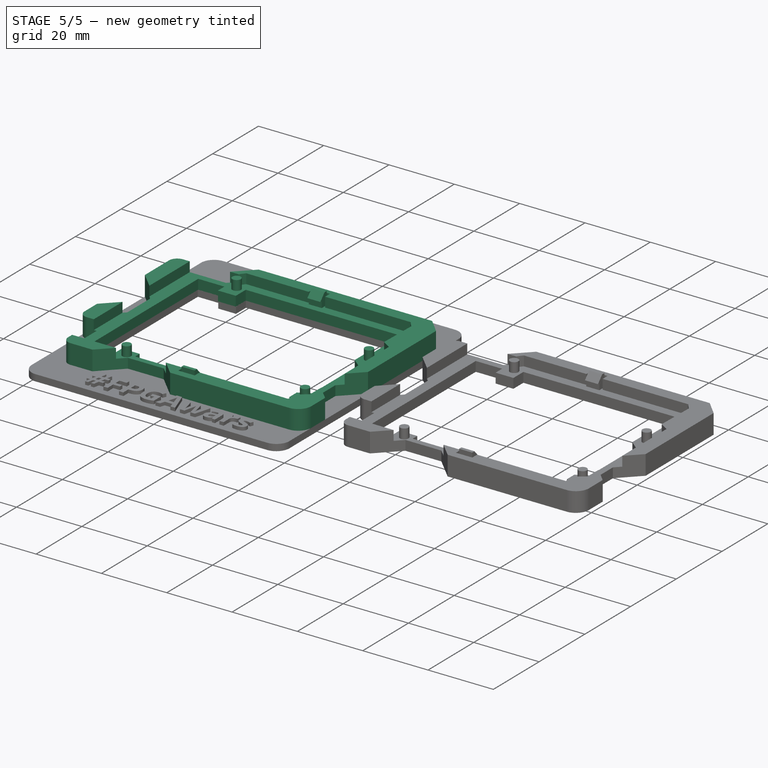
[diagram: stage 5 of 5 — iso view after this stage's code; geometry added in this stage tinted green]
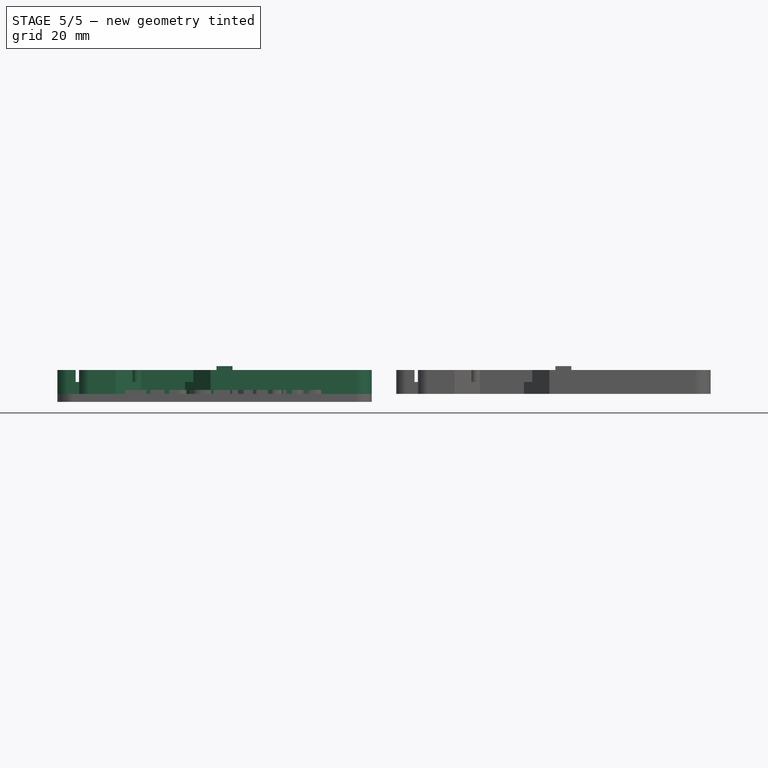
[diagram: stage 5 of 5 — front view after this stage's code; geometry added in this stage tinted green]
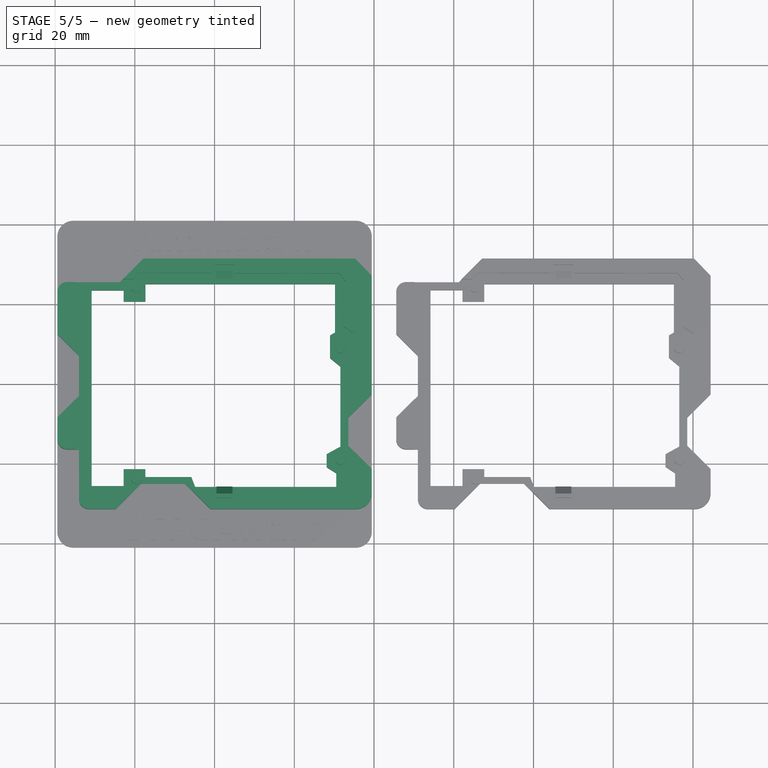
[diagram: stage 5 of 5 — top view after this stage's code; geometry added in this stage tinted green]
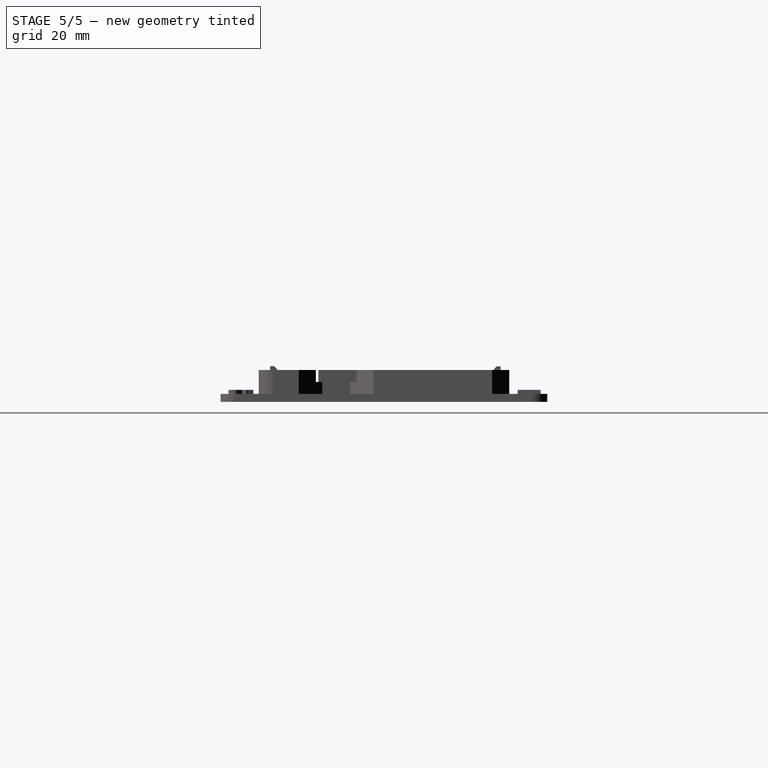
[diagram: stage 5 of 5 — right view after this stage's code; geometry added in this stage tinted green]
FEATURE [Part::MultiFuse] Fusion002  label="Base-textos"
  Shapes = -> [Extrude009,Extrude008,Extrude007]
FEATURE [Part::MultiFuse] Fusion003  label="Soporte-Alhambra-II-con-texto"
  Shapes = -> [Fusion002,Fusion001]
FEATURE [Part::FeaturePython] Clone001  label="Soporte-Alhambra-II-con-texto-impresion-prev"  # Draft clone (typed FeaturePython)
  AttacherType = Attacher::AttachEngine3D
  Objects = -> [Fusion003]
  Scale = (1,1,1)
FEATURE [Part::Fillet] Fillet  label="Soporte-Alhambra-II-con-texto-impresion"
  Base = -> Clone001
  Edges = 3 edges r=2.5: [Edge211,Edge353,Edge419]
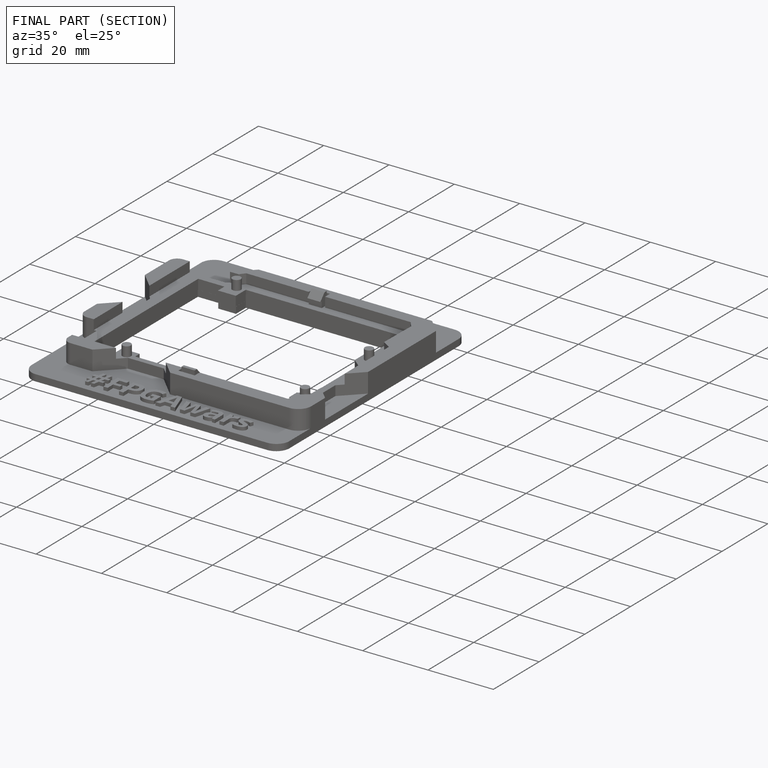
[diagram: finished part — half-section view (interior)]
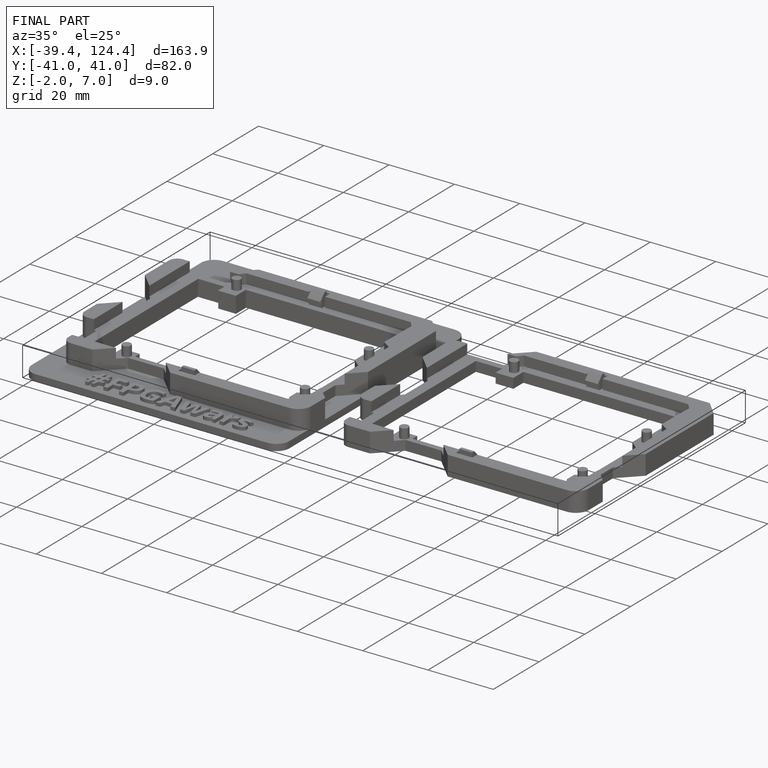
[diagram: finished part — iso view with bounding-box wireframe]
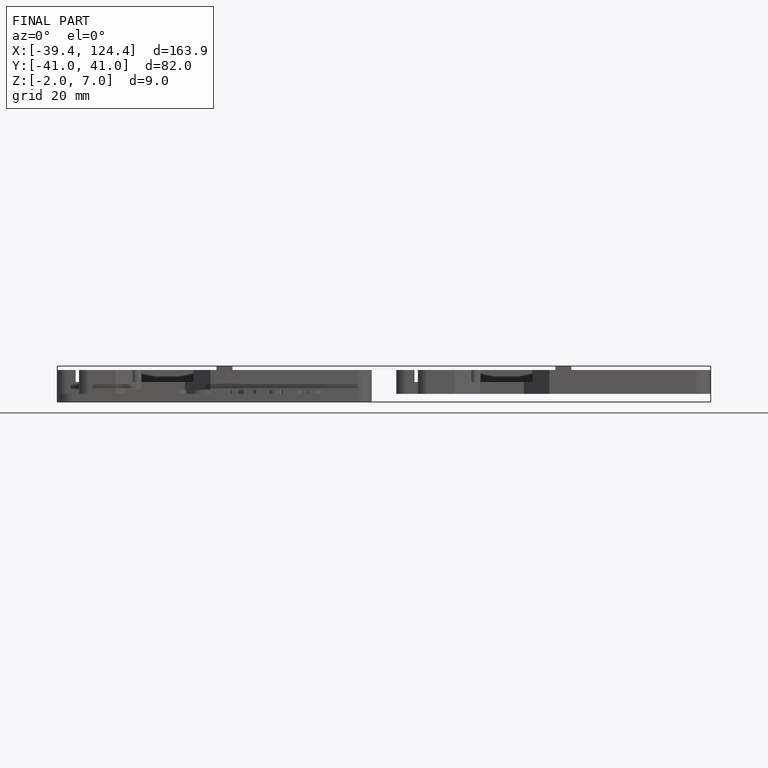
[diagram: finished part — front view with bounding-box wireframe]
